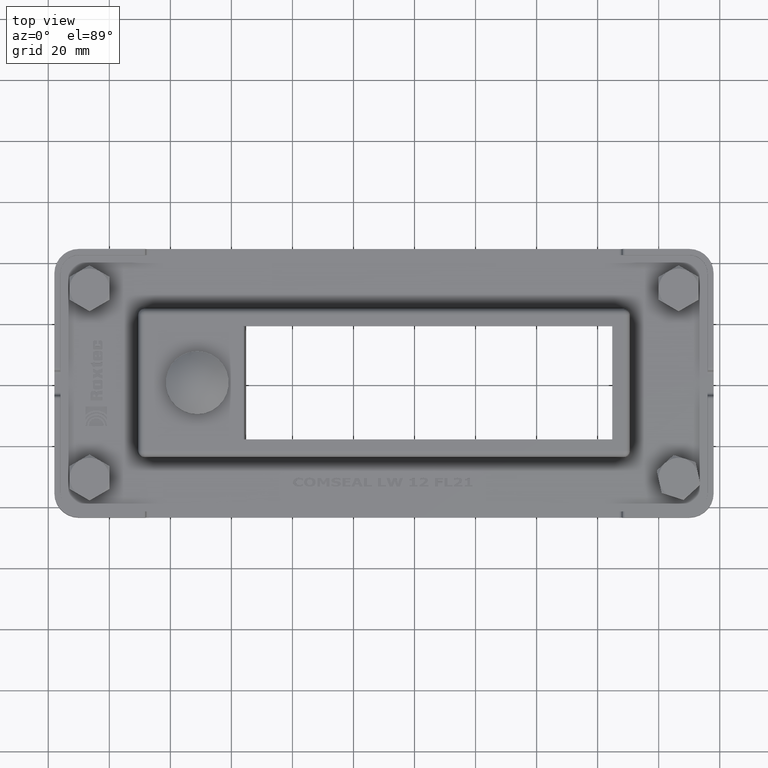
[diagram: clean part render]
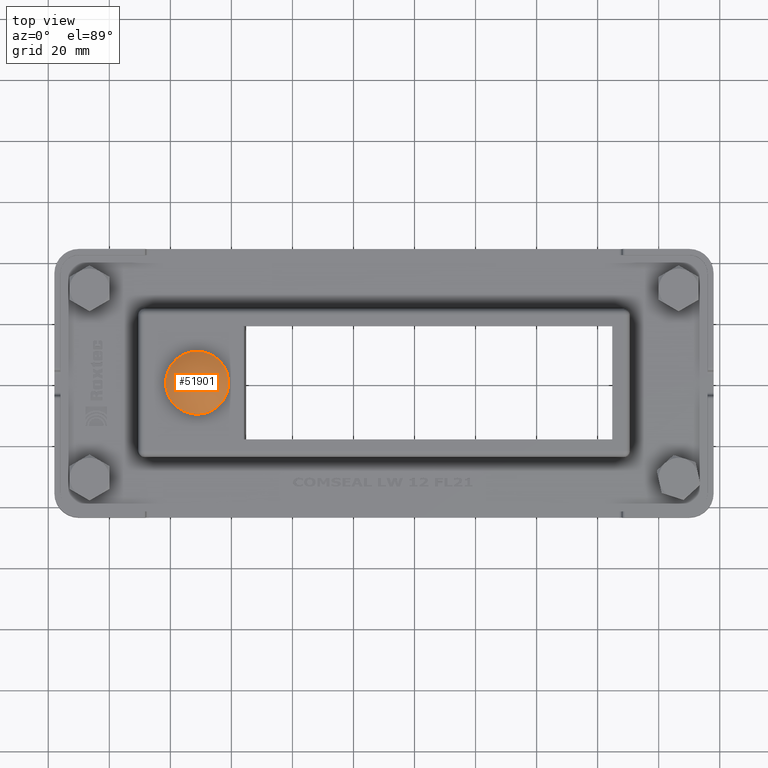
[diagram: same view with one face highlighted and labeled with its STEP entity id]
A machine part, top view. The second image highlights one B-rep face of the part: STEP entity #51901.
In plain terms, the highlighted spherical surface has radius 16 mm.
Its self-contained STEP definition (entity closure, byte-faithful):
#51885=CARTESIAN_POINT('',(11.120000000000005,0.0,0.0));
#51886=DIRECTION('',(0.0,0.0,1.0));
#51887=DIRECTION('',(1.0,0.0,0.0));
#51888=AXIS2_PLACEMENT_3D('',#51885,#51886,#51887);
#51889=SPHERICAL_SURFACE('',#51888,16.000000000000004);
#51890=CARTESIAN_POINT('',(-1.102699169986955,10.325000000000003,0.0));
#51891=VERTEX_POINT('',#51890);
#51892=CARTESIAN_POINT('',(-1.102699169986954,-2.714552E-032,0.0));
#51893=DIRECTION('',(1.0,0.0,0.0));
#51894=DIRECTION('',(0.0,1.0,0.0));
#51895=AXIS2_PLACEMENT_3D('',#51892,#51893,#51894);
#51896=CIRCLE('',#51895,10.325000000000003);
#51897=EDGE_CURVE('',#51891,#51891,#51896,.T.);
#51898=ORIENTED_EDGE('',*,*,#51897,.F.);
#51899=EDGE_LOOP('',(#51898));
#51900=FACE_OUTER_BOUND('',#51899,.T.);
#51901=ADVANCED_FACE('',(#51900),#51889,.T.);